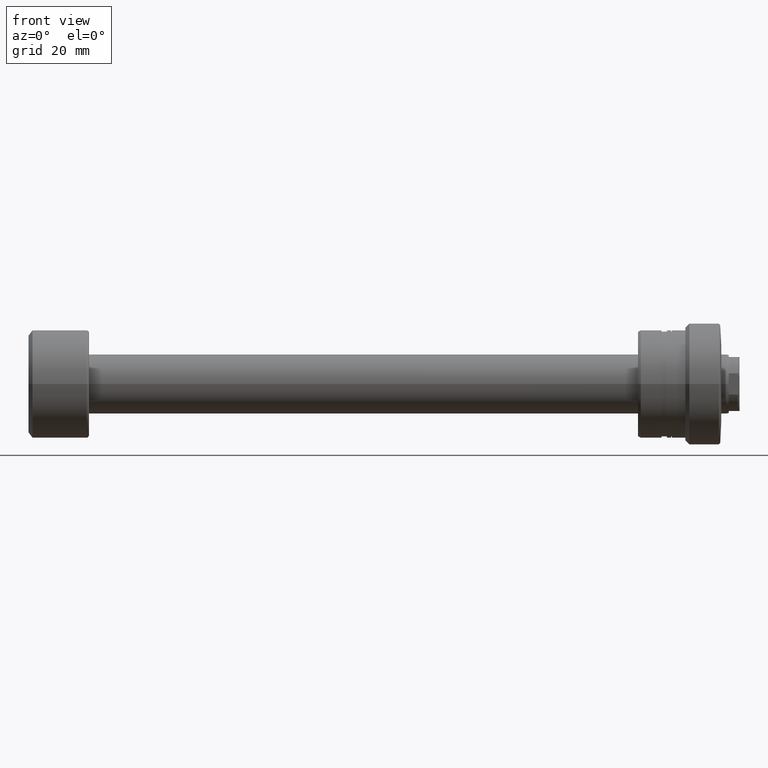
[diagram: clean part render]
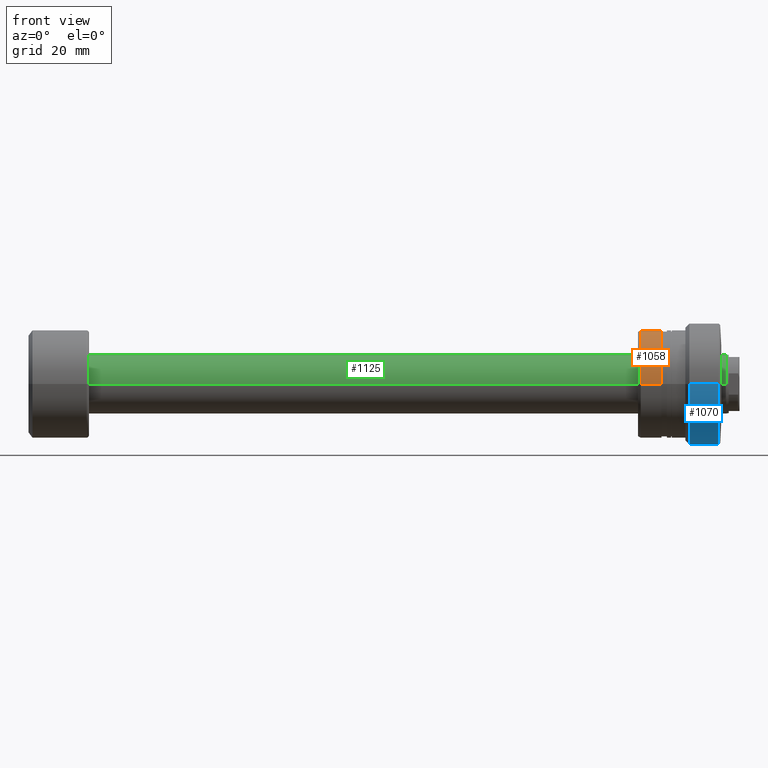
[diagram: same view with three faces highlighted in distinct colors, each labeled with its STEP entity id]
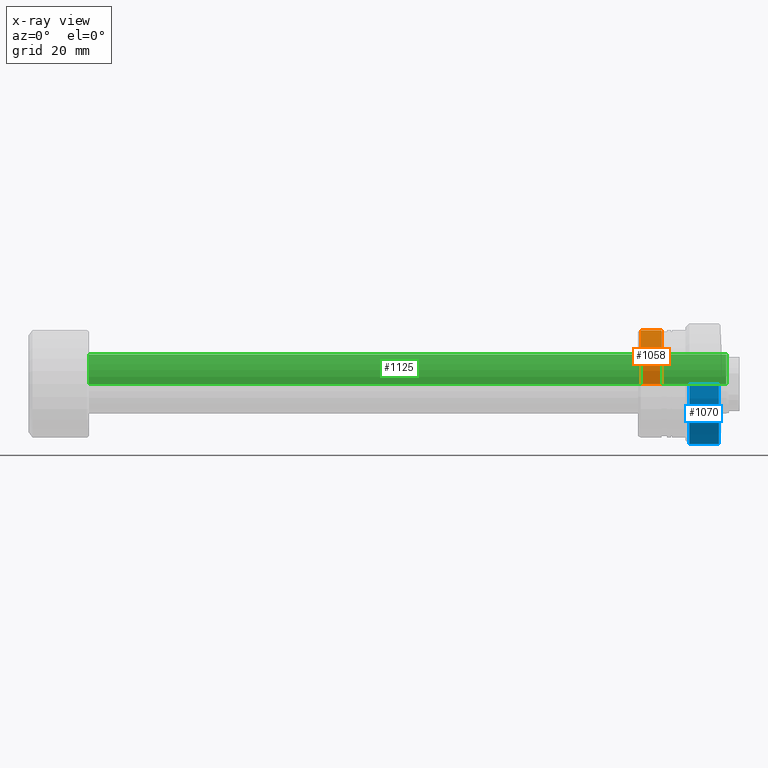
[diagram: x-ray of the same camera — body ghosted, the three highlighted faces saturated]
A machine part, front view with three faces highlighted in distinct colors.
The next image is the same camera in x-ray (body ghosted, the three faces saturated) — at least one of them is partly hidden behind the body in this view.
Their STEP definitions:

[orange] entity #1058 — the highlighted cylindrical surface (partial cylindrical patch) has radius 20 mm, axis along (1, 0, 0).
#15 = AXIS2_PLACEMENT_3D ( 'NONE', #1295, #341, #1695 ) ;
#178 = EDGE_CURVE ( 'NONE', #493, #1552, #1930, .T. ) ;
#218 = CARTESIAN_POINT ( 'NONE',  ( -30.28002276692726014, -20.00000000000001776, 2.449293598294708880E-15 ) ) ;
#235 = EDGE_CURVE ( 'NONE', #493, #1917, #1984, .T. ) ;
#239 = VECTOR ( 'NONE', #954, 1000.000000000000000 ) ;
#320 = CARTESIAN_POINT ( 'NONE',  ( -30.50000000000030553, 20.00000000000000355, 0.000000000000000000 ) ) ;
#341 = DIRECTION ( 'NONE',  ( 1.000000000000000000, 3.039592211588219332E-15, -0.000000000000000000 ) ) ;
#345 = EDGE_CURVE ( 'NONE', #1917, #1139, #1752, .T. ) ;
#401 = CARTESIAN_POINT ( 'NONE',  ( -30.50000000000024158, -6.686410843751637443E-16, 0.000000000000000000 ) ) ;
#432 = CARTESIAN_POINT ( 'NONE',  ( -30.28002276692732408, 0.000000000000000000, 0.000000000000000000 ) ) ;
#450 = DIRECTION ( 'NONE',  ( -3.122502256758250009E-15, 1.000000000000000000, 0.000000000000000000 ) ) ;
#493 = VERTEX_POINT ( 'NONE', #320 ) ;
#689 = ORIENTED_EDGE ( 'NONE', *, *, #2266, .F. ) ;
#728 = EDGE_LOOP ( 'NONE', ( #1101, #2016, #689, #1244 ) ) ;
#763 = CARTESIAN_POINT ( 'NONE',  ( -30.50000000000018119, -20.00000000000000355, 2.449293598294706513E-15 ) ) ;
#870 = CARTESIAN_POINT ( 'NONE',  ( -22.80878161770250045, 20.00000000000005329, 0.000000000000000000 ) ) ;
#954 = DIRECTION ( 'NONE',  ( 1.000000000000000000, 3.039592211588219332E-15, -0.000000000000000000 ) ) ;
#984 = CYLINDRICAL_SURFACE ( 'NONE', #2066, 20.00000000000001776 ) ;
#1058 = ADVANCED_FACE ( 'NONE', ( #1950 ), #984, .T. ) ;
#1101 = ORIENTED_EDGE ( 'NONE', *, *, #235, .T. ) ;
#1139 = VERTEX_POINT ( 'NONE', #2012 ) ;
#1200 = DIRECTION ( 'NONE',  ( 1.000000000000000000, 3.039592211588219332E-15, -0.000000000000000000 ) ) ;
#1244 = ORIENTED_EDGE ( 'NONE', *, *, #178, .F. ) ;
#1295 = CARTESIAN_POINT ( 'NONE',  ( -22.80878161770243651, 2.270952640808137383E-14, 0.000000000000000000 ) ) ;
#1391 = DIRECTION ( 'NONE',  ( -3.122502256758252376E-15, 1.000000000000000000, 0.000000000000000000 ) ) ;
#1451 = CIRCLE ( 'NONE', #15, 20.00000000000002842 ) ;
#1552 = VERTEX_POINT ( 'NONE', #870 ) ;
#1559 = AXIS2_PLACEMENT_3D ( 'NONE', #401, #1943, #1391 ) ;
#1581 = DIRECTION ( 'NONE',  ( 1.000000000000000000, 3.039592211588219332E-15, -0.000000000000000000 ) ) ;
#1695 = DIRECTION ( 'NONE',  ( -3.122502256758248431E-15, 1.000000000000000000, 0.000000000000000000 ) ) ;
#1752 = LINE ( 'NONE', #218, #239 ) ;
#1771 = CARTESIAN_POINT ( 'NONE',  ( -30.28002276692738803, 20.00000000000001776, 0.000000000000000000 ) ) ;
#1901 = VECTOR ( 'NONE', #1200, 1000.000000000000000 ) ;
#1917 = VERTEX_POINT ( 'NONE', #763 ) ;
#1930 = LINE ( 'NONE', #1771, #1901 ) ;
#1943 = DIRECTION ( 'NONE',  ( 1.000000000000000000, 3.039592211588219332E-15, -0.000000000000000000 ) ) ;
#1950 = FACE_OUTER_BOUND ( 'NONE', #728, .T. ) ;
#1984 = CIRCLE ( 'NONE', #1559, 20.00000000000000355 ) ;
#2012 = CARTESIAN_POINT ( 'NONE',  ( -22.80878161770237611, -20.00000000000000711, 2.449293598294709668E-15 ) ) ;
#2016 = ORIENTED_EDGE ( 'NONE', *, *, #345, .T. ) ;
#2066 = AXIS2_PLACEMENT_3D ( 'NONE', #432, #1581, #450 ) ;
#2266 = EDGE_CURVE ( 'NONE', #1552, #1139, #1451, .T. ) ;

[blue] entity #1070 — the highlighted cylindrical surface (partial cylindrical patch) has radius 22.5 mm, axis along (1, 0, 0).
#75 = CARTESIAN_POINT ( 'NONE',  ( -12.50000000000068567, -22.50000000000000355, 2.755455298081551483E-15 ) ) ;
#77 = DIRECTION ( 'NONE',  ( -3.035766082959400977E-15, 1.000000000000000000, 0.000000000000000000 ) ) ;
#86 = VERTEX_POINT ( 'NONE', #2251 ) ;
#180 = VERTEX_POINT ( 'NONE', #1589 ) ;
#200 = ORIENTED_EDGE ( 'NONE', *, *, #2272, .F. ) ;
#262 = CYLINDRICAL_SURFACE ( 'NONE', #989, 22.50000000000006750 ) ;
#273 = CARTESIAN_POINT ( 'NONE',  ( -1.600000000000832312, 22.50000000000017408, 0.000000000000000000 ) ) ;
#292 = EDGE_LOOP ( 'NONE', ( #460, #1870, #361, #200 ) ) ;
#361 = ORIENTED_EDGE ( 'NONE', *, *, #2209, .T. ) ;
#404 = VECTOR ( 'NONE', #578, 1000.000000000000000 ) ;
#410 = DIRECTION ( 'NONE',  ( 1.000000000000000000, 3.039592211588219332E-15, -0.000000000000000000 ) ) ;
#447 = DIRECTION ( 'NONE',  ( 1.000000000000000000, 3.039592211588219332E-15, -0.000000000000000000 ) ) ;
#460 = ORIENTED_EDGE ( 'NONE', *, *, #695, .F. ) ;
#545 = CARTESIAN_POINT ( 'NONE',  ( -30.28002276692725303, -22.50000000000006750, 2.755455298081553061E-15 ) ) ;
#578 = DIRECTION ( 'NONE',  ( 1.000000000000000000, 3.039592211588219332E-15, -0.000000000000000000 ) ) ;
#695 = EDGE_CURVE ( 'NONE', #1373, #86, #1538, .T. ) ;
#791 = CARTESIAN_POINT ( 'NONE',  ( -1.600000000000763922, 8.717557383052277888E-14, 0.000000000000000000 ) ) ;
#989 = AXIS2_PLACEMENT_3D ( 'NONE', #2343, #410, #1362 ) ;
#1035 = VERTEX_POINT ( 'NONE', #273 ) ;
#1070 = ADVANCED_FACE ( 'NONE', ( #1594 ), #262, .T. ) ;
#1111 = CIRCLE ( 'NONE', #1609, 22.50000000000005329 ) ;
#1302 = EDGE_CURVE ( 'NONE', #1373, #180, #1111, .T. ) ;
#1328 = CIRCLE ( 'NONE', #2115, 22.50000000000008527 ) ;
#1331 = DIRECTION ( 'NONE',  ( 1.000000000000000000, 3.039592211588219332E-15, -0.000000000000000000 ) ) ;
#1362 = DIRECTION ( 'NONE',  ( -3.083952846180981011E-15, 1.000000000000000000, 0.000000000000000000 ) ) ;
#1373 = VERTEX_POINT ( 'NONE', #75 ) ;
#1538 = LINE ( 'NONE', #545, #2258 ) ;
#1589 = CARTESIAN_POINT ( 'NONE',  ( -12.50000000000082068, 22.50000000000010658, 0.000000000000000000 ) ) ;
#1594 = FACE_OUTER_BOUND ( 'NONE', #292, .T. ) ;
#1609 = AXIS2_PLACEMENT_3D ( 'NONE', #2443, #1331, #2047 ) ;
#1721 = LINE ( 'NONE', #2283, #404 ) ;
#1870 = ORIENTED_EDGE ( 'NONE', *, *, #1302, .T. ) ;
#2047 = DIRECTION ( 'NONE',  ( -3.006854025026458399E-15, 1.000000000000000000, 0.000000000000000000 ) ) ;
#2115 = AXIS2_PLACEMENT_3D ( 'NONE', #791, #447, #77 ) ;
#2209 = EDGE_CURVE ( 'NONE', #180, #1035, #1721, .T. ) ;
#2251 = CARTESIAN_POINT ( 'NONE',  ( -1.600000000000695755, -22.49999999999999645, 2.755455298081553850E-15 ) ) ;
#2258 = VECTOR ( 'NONE', #2284, 1000.000000000000000 ) ;
#2272 = EDGE_CURVE ( 'NONE', #86, #1035, #1328, .T. ) ;
#2283 = CARTESIAN_POINT ( 'NONE',  ( -30.28002276692739159, 22.50000000000006750, 0.000000000000000000 ) ) ;
#2284 = DIRECTION ( 'NONE',  ( 1.000000000000000000, 3.039592211588219332E-15, -0.000000000000000000 ) ) ;
#2343 = CARTESIAN_POINT ( 'NONE',  ( -30.28002276692732408, 0.000000000000000000, 0.000000000000000000 ) ) ;
#2443 = CARTESIAN_POINT ( 'NONE',  ( -12.50000000000075318, 5.404401872421122820E-14, 0.000000000000000000 ) ) ;

[green] entity #1125 — the highlighted cylindrical surface (edge-blend (fillet) strip) has radius 11 mm, axis along (-1, -0, -0).
#88 = CARTESIAN_POINT ( 'NONE',  ( 1.176496554275982935E-16, -11.00000000000009770, 0.000000000000000000 ) ) ;
#106 = CARTESIAN_POINT ( 'NONE',  ( 258.0667575123237611, 11.00000000000020073, 1.347111479062112859E-15 ) ) ;
#173 = CARTESIAN_POINT ( 'NONE',  ( -1.176496554275982935E-16, 11.00000000000009770, 1.347111479062100632E-15 ) ) ;
#209 = VECTOR ( 'NONE', #1865, 1000.000000000000000 ) ;
#421 = FACE_OUTER_BOUND ( 'NONE', #2030, .T. ) ;
#490 = DIRECTION ( 'NONE',  ( -1.000000000000000000, -1.069542322069065801E-17, -0.000000000000000000 ) ) ;
#505 = DIRECTION ( 'NONE',  ( 0.000000000000000000, -1.000000000000000000, 0.000000000000000000 ) ) ;
#591 = CARTESIAN_POINT ( 'NONE',  ( 0.000000000000000000, 0.000000000000000000, 0.000000000000000000 ) ) ;
#754 = LINE ( 'NONE', #173, #209 ) ;
#766 = AXIS2_PLACEMENT_3D ( 'NONE', #1818, #1123, #1319 ) ;
#787 = VERTEX_POINT ( 'NONE', #1385 ) ;
#977 = ORIENTED_EDGE ( 'NONE', *, *, #1920, .T. ) ;
#996 = CIRCLE ( 'NONE', #766, 11.00000000000000000 ) ;
#1017 = VERTEX_POINT ( 'NONE', #1297 ) ;
#1123 = DIRECTION ( 'NONE',  ( -1.000000000000000000, -1.069542322069065801E-17, -0.000000000000000000 ) ) ;
#1125 = ADVANCED_FACE ( 'NONE', ( #421 ), #2298, .T. ) ;
#1166 = DIRECTION ( 'NONE',  ( 1.069542322069065955E-17, -1.000000000000000000, 0.000000000000000000 ) ) ;
#1297 = CARTESIAN_POINT ( 'NONE',  ( 22.40000000000000924, 11.00000000000000000, 1.347111479062094518E-15 ) ) ;
#1319 = DIRECTION ( 'NONE',  ( 0.000000000000000000, -1.000000000000000000, 0.000000000000000000 ) ) ;
#1385 = CARTESIAN_POINT ( 'NONE',  ( 258.0667575123237611, -11.00000000000019362, 0.000000000000000000 ) ) ;
#1528 = CARTESIAN_POINT ( 'NONE',  ( 258.0667575123237611, 2.760133190785652966E-15, 0.000000000000000000 ) ) ;
#1648 = CIRCLE ( 'NONE', #1957, 11.00000000000019718 ) ;
#1743 = ORIENTED_EDGE ( 'NONE', *, *, #2150, .T. ) ;
#1780 = ORIENTED_EDGE ( 'NONE', *, *, #2082, .F. ) ;
#1818 = CARTESIAN_POINT ( 'NONE',  ( 22.40000000000000924, 2.395774801434708725E-16, 0.000000000000000000 ) ) ;
#1865 = DIRECTION ( 'NONE',  ( -1.000000000000000000, -1.069542322069065801E-17, -0.000000000000000000 ) ) ;
#1920 = EDGE_CURVE ( 'NONE', #787, #2061, #1648, .T. ) ;
#1957 = AXIS2_PLACEMENT_3D ( 'NONE', #1528, #490, #505 ) ;
#2004 = ORIENTED_EDGE ( 'NONE', *, *, #2386, .F. ) ;
#2030 = EDGE_LOOP ( 'NONE', ( #977, #1743, #1780, #2004 ) ) ;
#2061 = VERTEX_POINT ( 'NONE', #106 ) ;
#2082 = EDGE_CURVE ( 'NONE', #2126, #1017, #996, .T. ) ;
#2110 = DIRECTION ( 'NONE',  ( -1.000000000000000000, -1.069542322069065801E-17, -0.000000000000000000 ) ) ;
#2126 = VERTEX_POINT ( 'NONE', #2253 ) ;
#2150 = EDGE_CURVE ( 'NONE', #2061, #1017, #754, .T. ) ;
#2162 = DIRECTION ( 'NONE',  ( -1.000000000000000000, -1.069542322069065801E-17, -0.000000000000000000 ) ) ;
#2223 = AXIS2_PLACEMENT_3D ( 'NONE', #591, #2110, #1166 ) ;
#2253 = CARTESIAN_POINT ( 'NONE',  ( 22.40000000000000924, -11.00000000000000000, 0.000000000000000000 ) ) ;
#2273 = VECTOR ( 'NONE', #2162, 1000.000000000000000 ) ;
#2298 = CYLINDRICAL_SURFACE ( 'NONE', #2223, 11.00000000000009770 ) ;
#2340 = LINE ( 'NONE', #88, #2273 ) ;
#2386 = EDGE_CURVE ( 'NONE', #787, #2126, #2340, .T. ) ;